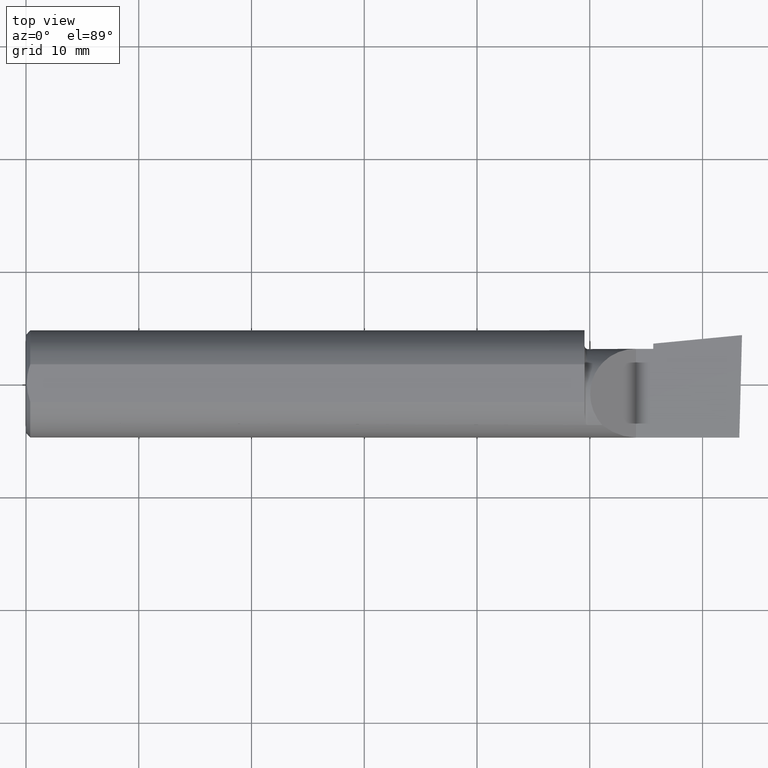
[diagram: clean part render]
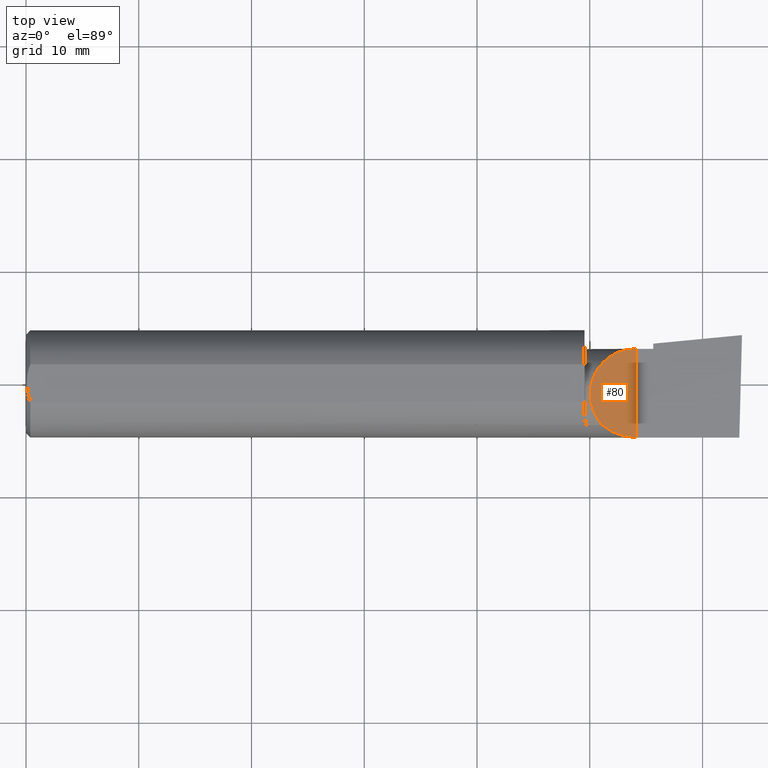
[diagram: same view with one face highlighted and labeled with its STEP entity id]
A machine part, top view. The second image highlights one B-rep face of the part: STEP entity #80.
In plain terms, the highlighted planar face has unit normal (-0.7071, 0, -0.7071).
Its self-contained STEP definition (entity closure, byte-faithful):
#72 = CARTESIAN_POINT ( 'NONE',  ( 2.011965325165093965, -0.1454917112299471127, 0.1180346748349047070 ) ) ;
#80 = ADVANCED_FACE ( 'NONE', ( #609 ), #182, .F. ) ;
#96 = CARTESIAN_POINT ( 'NONE',  ( 2.045676520271627385, -0.1728409665178088639, 0.08432347972837128669 ) ) ;
#114 = VERTEX_POINT ( 'NONE', #173 ) ;
#124 = CARTESIAN_POINT ( 'NONE',  ( 2.129999999999999893, -0.2500000000000000555, 1.065442715258197396E-16 ) ) ;
#130 = VERTEX_POINT ( 'NONE', #176 ) ;
#132 = DIRECTION ( 'NONE',  ( -0.7071067811865513475, 0.000000000000000000, 0.7071067811865436870 ) ) ;
#133 = ORIENTED_EDGE ( 'NONE', *, *, #546, .T. ) ;
#173 = CARTESIAN_POINT ( 'NONE',  ( 2.011965325165093965, -0.1454917112299471127, 0.1180346748349047070 ) ) ;
#176 = CARTESIAN_POINT ( 'NONE',  ( 2.129999999999999893, 0.1226499999999999535, 1.065442715258197396E-16 ) ) ;
#180 = ORIENTED_EDGE ( 'NONE', *, *, #538, .F. ) ;
#182 = PLANE ( 'NONE',  #218 ) ;
#184 =( BOUNDED_CURVE ( )  B_SPLINE_CURVE ( 3, ( #72, #505, #456, #553 ),
 .UNSPECIFIED., .F., .F. ) 
 B_SPLINE_CURVE_WITH_KNOTS ( ( 4, 4 ),
 ( 5.541729662751381014, 7.853981633974483678 ),
 .UNSPECIFIED. ) 
 CURVE ( )  GEOMETRIC_REPRESENTATION_ITEM ( )  RATIONAL_B_SPLINE_CURVE ( ( 1.000000000000000000, 0.6019254882129702056, 0.6019254882129702056, 1.000000000000000000 ) ) 
 REPRESENTATION_ITEM ( '' )  );
#218 = AXIS2_PLACEMENT_3D ( 'NONE', #464, #563, #132 ) ;
#223 =( BOUNDED_CURVE ( )  B_SPLINE_CURVE ( 3, ( #333, #535, #96, #283 ),
 .UNSPECIFIED., .F., .T. ) 
 B_SPLINE_CURVE_WITH_KNOTS ( ( 4, 4 ),
 ( 4.712388980384689674, 5.393970886271882925 ),
 .UNSPECIFIED. ) 
 CURVE ( )  GEOMETRIC_REPRESENTATION_ITEM ( )  RATIONAL_B_SPLINE_CURVE ( ( 1.000000000000000000, 0.9616603987079553884, 0.9616603987079553884, 1.000000000000000000 ) ) 
 REPRESENTATION_ITEM ( '' )  );
#270 = DIRECTION ( 'NONE',  ( -0.000000000000000000, 1.000000000000000000, -0.000000000000000000 ) ) ;
#281 = EDGE_CURVE ( 'NONE', #282, #114, #223, .T. ) ;
#282 = VERTEX_POINT ( 'NONE', #626 ) ;
#283 = CARTESIAN_POINT ( 'NONE',  ( 2.011965325165093965, -0.1454917112299471127, 0.1180346748349047070 ) ) ;
#292 = EDGE_LOOP ( 'NONE', ( #180, #545, #133 ) ) ;
#315 = LINE ( 'NONE', #124, #384 ) ;
#333 = CARTESIAN_POINT ( 'NONE',  ( 2.129999999999999893, -0.1873499999999999888, 1.065442715258197396E-16 ) ) ;
#384 = VECTOR ( 'NONE', #270, 39.37007874015748143 ) ;
#456 = CARTESIAN_POINT ( 'NONE',  ( 1.967758842172327105, 0.1226500000000000229, 0.1622411578276707345 ) ) ;
#464 = CARTESIAN_POINT ( 'NONE',  ( 2.129999999999999893, -0.2500000000000000555, 1.065442715258197396E-16 ) ) ;
#505 = CARTESIAN_POINT ( 'NONE',  ( 1.902393788885674120, -0.02584108761840332724, 0.2276062111143229705 ) ) ;
#535 = CARTESIAN_POINT ( 'NONE',  ( 2.086590019116435268, -0.1873499999999999610, 0.04340998088356396584 ) ) ;
#538 = EDGE_CURVE ( 'NONE', #114, #130, #184, .T. ) ;
#545 = ORIENTED_EDGE ( 'NONE', *, *, #281, .F. ) ;
#546 = EDGE_CURVE ( 'NONE', #282, #130, #315, .T. ) ;
#553 = CARTESIAN_POINT ( 'NONE',  ( 2.129999999999999893, 0.1226499999999999535, 1.065442715258197396E-16 ) ) ;
#563 = DIRECTION ( 'NONE',  ( -0.7071067811865436870, 0.000000000000000000, -0.7071067811865513475 ) ) ;
#609 = FACE_OUTER_BOUND ( 'NONE', #292, .T. ) ;
#626 = CARTESIAN_POINT ( 'NONE',  ( 2.129999999999999893, -0.1873499999999999888, 1.065442715258197396E-16 ) ) ;